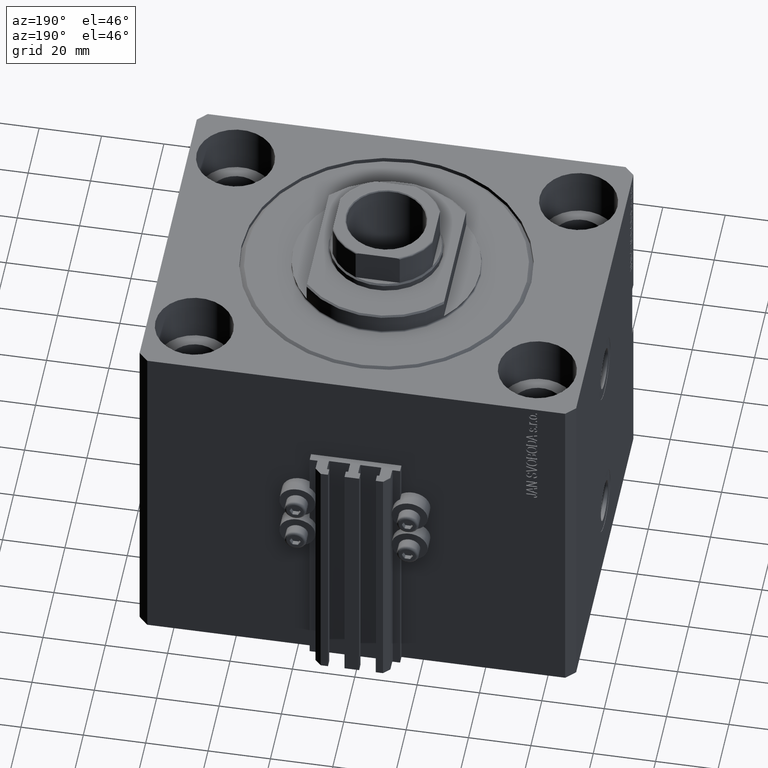
[diagram: clean part render]
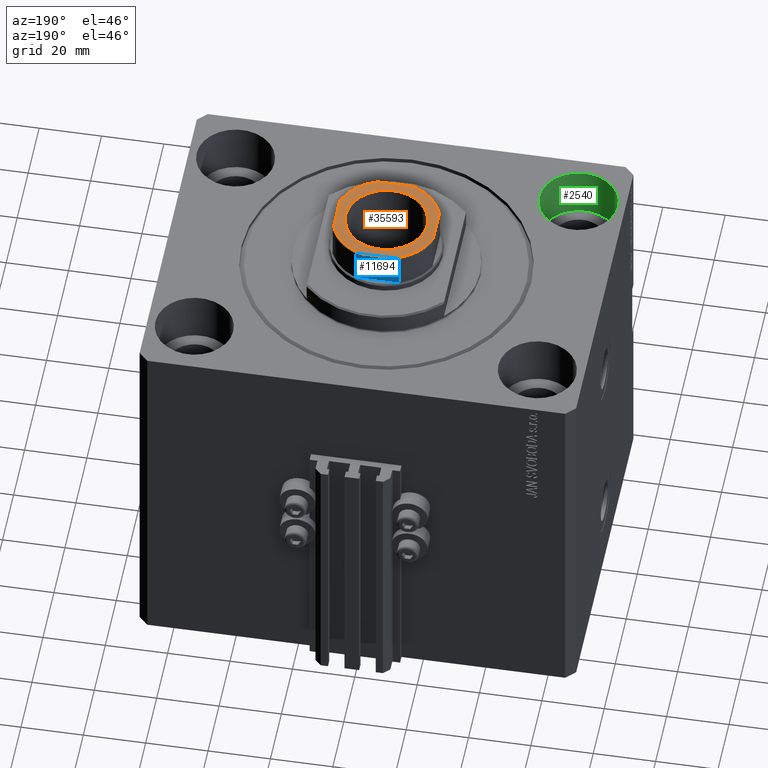
[diagram: same view with three faces highlighted in distinct colors, each labeled with its STEP entity id]
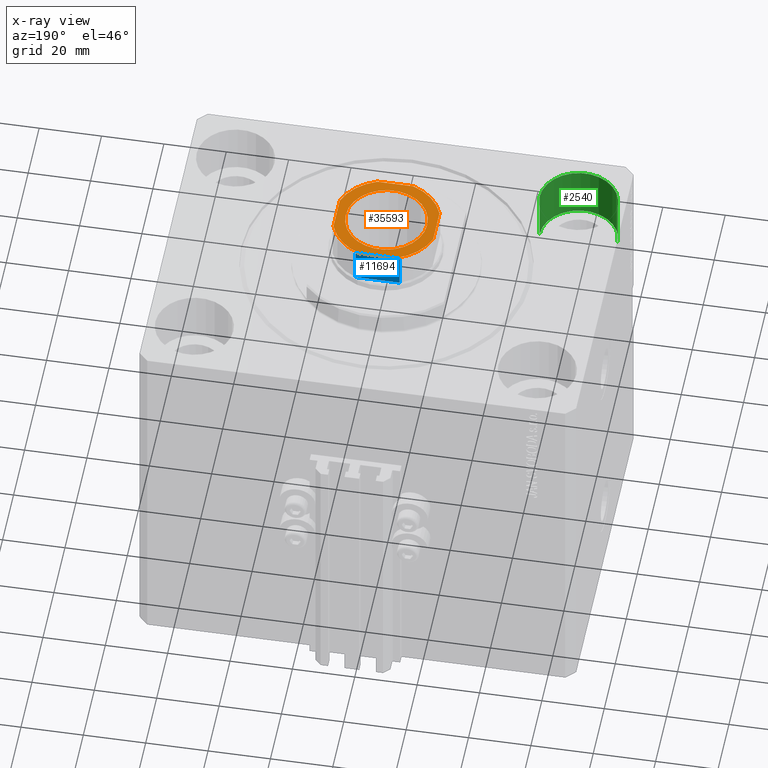
[diagram: x-ray of the same camera — body ghosted, the three highlighted faces saturated]
A machine part, auxiliary view with three faces highlighted in distinct colors.
The next image is the same camera in x-ray (body ghosted, the three faces saturated) — at least one of them is partly hidden behind the body in this view.
Their STEP definitions:

[orange] entity #35593 — the highlighted planar face has unit normal (0, 0, 1).
#888 = CIRCLE ( 'NONE', #45003, 17.00000000000000000 ) ;
#1008 = AXIS2_PLACEMENT_3D ( 'NONE', #35154, #36130, #43273 ) ;
#1222 = ORIENTED_EDGE ( 'NONE', *, *, #22943, .T. ) ;
#1229 = CARTESIAN_POINT ( 'NONE',  ( 0.000000000000000000, 0.000000000000000000, 115.0000000000000000 ) ) ;
#1990 = EDGE_CURVE ( 'NONE', #29899, #39072, #888, .T. ) ;
#2306 = VERTEX_POINT ( 'NONE', #12203 ) ;
#2741 = DIRECTION ( 'NONE',  ( -0.000000000000000000, 0.000000000000000000, 1.000000000000000000 ) ) ;
#2802 = EDGE_LOOP ( 'NONE', ( #1222, #17059, #14681, #40336, #27572, #35473, #37723, #5499 ) ) ;
#3906 = DIRECTION ( 'NONE',  ( -0.000000000000000000, 0.000000000000000000, 1.000000000000000000 ) ) ;
#5158 = VERTEX_POINT ( 'NONE', #33772 ) ;
#5499 = ORIENTED_EDGE ( 'NONE', *, *, #48217, .T. ) ;
#6064 = VECTOR ( 'NONE', #24381, 1000.000000000000000 ) ;
#6183 = CARTESIAN_POINT ( 'NONE',  ( 0.000000000000000000, 0.000000000000000000, 115.0000000000000000 ) ) ;
#6192 = CARTESIAN_POINT ( 'NONE',  ( 16.00000000000000000, 5.744562646538033945, 115.0000000000000000 ) ) ;
#6640 = CIRCLE ( 'NONE', #42912, 13.05000000000003268 ) ;
#7552 = DIRECTION ( 'NONE',  ( -0.000000000000000000, 0.000000000000000000, 1.000000000000000000 ) ) ;
#7554 = CARTESIAN_POINT ( 'NONE',  ( 5.744562646538033057, 16.00000000000000000, 115.0000000000000000 ) ) ;
#7880 = VERTEX_POINT ( 'NONE', #6192 ) ;
#7931 = LINE ( 'NONE', #22991, #13995 ) ;
#9322 = CARTESIAN_POINT ( 'NONE',  ( -16.00000000000000000, 15.99999999999999645, 115.0000000000000000 ) ) ;
#9603 = EDGE_CURVE ( 'NONE', #5158, #32134, #32564, .T. ) ;
#9815 = AXIS2_PLACEMENT_3D ( 'NONE', #45318, #7552, #37687 ) ;
#10361 = CARTESIAN_POINT ( 'NONE',  ( -5.744562646538033945, 16.00000000000000000, 115.0000000000000000 ) ) ;
#10799 = VECTOR ( 'NONE', #39088, 1000.000000000000000 ) ;
#10916 = CARTESIAN_POINT ( 'NONE',  ( 5.744562646538024175, -16.00000000000000355, 115.0000000000000000 ) ) ;
#11319 = CARTESIAN_POINT ( 'NONE',  ( 0.000000000000000000, 0.000000000000000000, 115.0000000000000000 ) ) ;
#11395 = CIRCLE ( 'NONE', #9815, 17.00000000000000000 ) ;
#12203 = CARTESIAN_POINT ( 'NONE',  ( -16.00000000000000000, 5.744562646538029504, 115.0000000000000000 ) ) ;
#13235 = VERTEX_POINT ( 'NONE', #10361 ) ;
#13812 = AXIS2_PLACEMENT_3D ( 'NONE', #21730, #2741, #48630 ) ;
#13995 = VECTOR ( 'NONE', #45697, 1000.000000000000000 ) ;
#14681 = ORIENTED_EDGE ( 'NONE', *, *, #27976, .T. ) ;
#14771 = FACE_BOUND ( 'NONE', #15767, .T. ) ;
#15399 = CIRCLE ( 'NONE', #42208, 17.00000000000000000 ) ;
#15767 = EDGE_LOOP ( 'NONE', ( #41610, #41421 ) ) ;
#15782 = EDGE_CURVE ( 'NONE', #32134, #5158, #6640, .T. ) ;
#16359 = CARTESIAN_POINT ( 'NONE',  ( -16.00000000000000000, -5.744562646538033945, 115.0000000000000000 ) ) ;
#16617 = CARTESIAN_POINT ( 'NONE',  ( -13.05000000000003268, 1.598164072887299324E-15, 115.0000000000000000 ) ) ;
#17059 = ORIENTED_EDGE ( 'NONE', *, *, #1990, .T. ) ;
#17130 = EDGE_CURVE ( 'NONE', #7880, #41048, #11395, .T. ) ;
#17523 = DIRECTION ( 'NONE',  ( 1.000000000000000000, 0.000000000000000000, 0.000000000000000000 ) ) ;
#17807 = DIRECTION ( 'NONE',  ( -1.084202172485504434E-16, 1.000000000000000000, -0.000000000000000000 ) ) ;
#19422 = EDGE_CURVE ( 'NONE', #42605, #35847, #15399, .T. ) ;
#21261 = LINE ( 'NONE', #39825, #10799 ) ;
#21730 = CARTESIAN_POINT ( 'NONE',  ( 0.000000000000000000, 0.000000000000000000, 115.0000000000000000 ) ) ;
#21872 = CARTESIAN_POINT ( 'NONE',  ( 16.00000000000000355, -5.744562646538033057, 115.0000000000000000 ) ) ;
#22603 = DIRECTION ( 'NONE',  ( -0.000000000000000000, 0.000000000000000000, 1.000000000000000000 ) ) ;
#22943 = EDGE_CURVE ( 'NONE', #2306, #29899, #21261, .T. ) ;
#22991 = CARTESIAN_POINT ( 'NONE',  ( -15.99999999999999645, -16.00000000000000355, 115.0000000000000000 ) ) ;
#23158 = DIRECTION ( 'NONE',  ( 1.000000000000000000, 0.000000000000000000, 0.000000000000000000 ) ) ;
#24381 = DIRECTION ( 'NONE',  ( -1.000000000000000000, -1.084202172485504434E-16, -0.000000000000000000 ) ) ;
#25418 = CARTESIAN_POINT ( 'NONE',  ( -5.744562646538029504, -16.00000000000000355, 115.0000000000000000 ) ) ;
#26590 = EDGE_CURVE ( 'NONE', #41048, #13235, #28103, .T. ) ;
#26866 = FACE_OUTER_BOUND ( 'NONE', #2802, .T. ) ;
#27572 = ORIENTED_EDGE ( 'NONE', *, *, #34438, .T. ) ;
#27976 = EDGE_CURVE ( 'NONE', #39072, #42605, #7931, .T. ) ;
#28103 = LINE ( 'NONE', #9322, #6064 ) ;
#28428 = DIRECTION ( 'NONE',  ( -0.000000000000000000, 0.000000000000000000, 1.000000000000000000 ) ) ;
#28816 = CIRCLE ( 'NONE', #13812, 17.00000000000000000 ) ;
#29899 = VERTEX_POINT ( 'NONE', #16359 ) ;
#32134 = VERTEX_POINT ( 'NONE', #16617 ) ;
#32564 = CIRCLE ( 'NONE', #1008, 13.05000000000003268 ) ;
#33633 = CARTESIAN_POINT ( 'NONE',  ( 16.00000000000000000, 16.00000000000000000, 115.0000000000000000 ) ) ;
#33772 = CARTESIAN_POINT ( 'NONE',  ( 13.05000000000003268, 0.000000000000000000, 115.0000000000000000 ) ) ;
#34438 = EDGE_CURVE ( 'NONE', #35847, #7880, #44726, .T. ) ;
#34471 = CARTESIAN_POINT ( 'NONE',  ( 0.000000000000000000, 0.000000000000000000, 115.0000000000000000 ) ) ;
#35154 = CARTESIAN_POINT ( 'NONE',  ( 0.000000000000000000, 0.000000000000000000, 115.0000000000000000 ) ) ;
#35473 = ORIENTED_EDGE ( 'NONE', *, *, #17130, .T. ) ;
#35544 = DIRECTION ( 'NONE',  ( 0.000000000000000000, -0.000000000000000000, -1.000000000000000000 ) ) ;
#35593 = ADVANCED_FACE ( 'NONE', ( #14771, #26866 ), #41925, .T. ) ;
#35847 = VERTEX_POINT ( 'NONE', #21872 ) ;
#36130 = DIRECTION ( 'NONE',  ( 0.000000000000000000, -0.000000000000000000, -1.000000000000000000 ) ) ;
#37687 = DIRECTION ( 'NONE',  ( 1.000000000000000000, 0.000000000000000000, 0.000000000000000000 ) ) ;
#37723 = ORIENTED_EDGE ( 'NONE', *, *, #26590, .T. ) ;
#39072 = VERTEX_POINT ( 'NONE', #25418 ) ;
#39088 = DIRECTION ( 'NONE',  ( 1.084202172485504434E-16, -1.000000000000000000, 0.000000000000000000 ) ) ;
#39456 = VECTOR ( 'NONE', #17807, 1000.000000000000000 ) ;
#39825 = CARTESIAN_POINT ( 'NONE',  ( -16.00000000000000000, 15.99999999999999645, 115.0000000000000000 ) ) ;
#40336 = ORIENTED_EDGE ( 'NONE', *, *, #19422, .T. ) ;
#41048 = VERTEX_POINT ( 'NONE', #7554 ) ;
#41421 = ORIENTED_EDGE ( 'NONE', *, *, #15782, .T. ) ;
#41610 = ORIENTED_EDGE ( 'NONE', *, *, #9603, .T. ) ;
#41925 = PLANE ( 'NONE',  #41932 ) ;
#41932 = AXIS2_PLACEMENT_3D ( 'NONE', #11319, #3906, #23158 ) ;
#41972 = DIRECTION ( 'NONE',  ( 1.000000000000000000, 0.000000000000000000, 0.000000000000000000 ) ) ;
#42208 = AXIS2_PLACEMENT_3D ( 'NONE', #34471, #22603, #45062 ) ;
#42605 = VERTEX_POINT ( 'NONE', #10916 ) ;
#42912 = AXIS2_PLACEMENT_3D ( 'NONE', #1229, #35544, #41972 ) ;
#43273 = DIRECTION ( 'NONE',  ( 1.000000000000000000, 0.000000000000000000, 0.000000000000000000 ) ) ;
#44726 = LINE ( 'NONE', #33633, #39456 ) ;
#45003 = AXIS2_PLACEMENT_3D ( 'NONE', #6183, #28428, #17523 ) ;
#45062 = DIRECTION ( 'NONE',  ( 1.000000000000000000, 0.000000000000000000, 0.000000000000000000 ) ) ;
#45318 = CARTESIAN_POINT ( 'NONE',  ( 0.000000000000000000, 0.000000000000000000, 115.0000000000000000 ) ) ;
#45697 = DIRECTION ( 'NONE',  ( 1.000000000000000000, 1.084202172485504434E-16, 0.000000000000000000 ) ) ;
#48217 = EDGE_CURVE ( 'NONE', #13235, #2306, #28816, .T. ) ;
#48630 = DIRECTION ( 'NONE',  ( 1.000000000000000000, 0.000000000000000000, 0.000000000000000000 ) ) ;

[blue] entity #11694 — the highlighted planar face has unit normal (0, -1, 0).
#423 = VERTEX_POINT ( 'NONE', #3771 ) ;
#881 = CARTESIAN_POINT ( 'NONE',  ( 7.055793701721082556, 16.00000000000000000, 114.6256279161197966 ) ) ;
#1241 = CARTESIAN_POINT ( 'NONE',  ( -7.088723439378916247, 16.00000000000000000, 114.5000000000000000 ) ) ;
#1693 = ORIENTED_EDGE ( 'NONE', *, *, #23651, .T. ) ;
#2906 = VECTOR ( 'NONE', #41749, 1000.000000000000000 ) ;
#3771 = CARTESIAN_POINT ( 'NONE',  ( -7.088723439378917135, 16.00000000000000000, 104.0000000000000284 ) ) ;
#4578 = CARTESIAN_POINT ( 'NONE',  ( 7.088723439378914470, 16.00000000000000000, 114.5000000000000000 ) ) ;
#4614 = CARTESIAN_POINT ( 'NONE',  ( 7.088723439378914470, 16.00000000000000000, 114.5000000000000000 ) ) ;
#4804 = CARTESIAN_POINT ( 'NONE',  ( 7.088723439378914470, 16.00000000000000000, -0.001000000000001000089 ) ) ;
#5280 = ORIENTED_EDGE ( 'NONE', *, *, #43227, .T. ) ;
#5321 = CARTESIAN_POINT ( 'NONE',  ( -6.914772706552272830, 15.99999999999999645, 114.7576711345670617 ) ) ;
#6050 = CARTESIAN_POINT ( 'NONE',  ( -5.744562646538033945, 16.00000000000000000, 115.0000000000000000 ) ) ;
#6064 = VECTOR ( 'NONE', #24381, 1000.000000000000000 ) ;
#7554 = CARTESIAN_POINT ( 'NONE',  ( 5.744562646538033057, 16.00000000000000000, 115.0000000000000000 ) ) ;
#8041 = CARTESIAN_POINT ( 'NONE',  ( 5.744562646538033057, 16.00000000000000000, 115.0000000000000000 ) ) ;
#8771 = VERTEX_POINT ( 'NONE', #1241 ) ;
#9260 = CARTESIAN_POINT ( 'NONE',  ( 7.088723439378914470, 16.00000000000000355, 114.5655697653146632 ) ) ;
#9322 = CARTESIAN_POINT ( 'NONE',  ( -16.00000000000000000, 15.99999999999999645, 115.0000000000000000 ) ) ;
#9538 = DIRECTION ( 'NONE',  ( -0.000000000000000000, -0.000000000000000000, 1.000000000000000000 ) ) ;
#10361 = CARTESIAN_POINT ( 'NONE',  ( -5.744562646538033945, 16.00000000000000000, 115.0000000000000000 ) ) ;
#10413 = AXIS2_PLACEMENT_3D ( 'NONE', #30504, #11715, #26782 ) ;
#11376 = LINE ( 'NONE', #38300, #2906 ) ;
#11694 = ADVANCED_FACE ( 'NONE', ( #19113 ), #15404, .F. ) ;
#11715 = DIRECTION ( 'NONE',  ( 1.084202172485504557E-16, -1.000000000000000000, 0.000000000000000000 ) ) ;
#12143 = ORIENTED_EDGE ( 'NONE', *, *, #22243, .T. ) ;
#12694 = LINE ( 'NONE', #4804, #22422 ) ;
#12974 = CARTESIAN_POINT ( 'NONE',  ( -7.088723439378917135, 16.00000000000000355, 114.5653596029795693 ) ) ;
#13235 = VERTEX_POINT ( 'NONE', #10361 ) ;
#14493 = ORIENTED_EDGE ( 'NONE', *, *, #17210, .F. ) ;
#15404 = PLANE ( 'NONE',  #10413 ) ;
#17210 = EDGE_CURVE ( 'NONE', #23973, #31482, #12694, .T. ) ;
#17409 = CARTESIAN_POINT ( 'NONE',  ( -7.088723439378916247, 16.00000000000000000, -0.001000000000001000089 ) ) ;
#18404 = B_SPLINE_CURVE_WITH_KNOTS ( 'NONE', 3,
 ( #27799, #12974, #43588, #32249, #5321, #24085, #38917, #24333, #42853, #6050 ),
 .UNSPECIFIED., .F., .F.,
 ( 4, 2, 2, 2, 4 ),
 ( 0.000000000000000000, 0.0001928955851489424047, 0.0003857911702978848094, 0.0007715823405957720040, 0.001543164681191536419 ),
 .UNSPECIFIED. ) ;
#19113 = FACE_OUTER_BOUND ( 'NONE', #39003, .T. ) ;
#19629 = CARTESIAN_POINT ( 'NONE',  ( 6.967626683430020229, 16.00000000000000000, 114.7212986014228733 ) ) ;
#20106 = CARTESIAN_POINT ( 'NONE',  ( 6.744478600285203740, 16.00000000000000000, 114.8522542963852828 ) ) ;
#22243 = EDGE_CURVE ( 'NONE', #23973, #423, #11376, .T. ) ;
#22422 = VECTOR ( 'NONE', #31492, 1000.000000000000000 ) ;
#23104 = CARTESIAN_POINT ( 'NONE',  ( 5.999698100840003434, 16.00000000000000355, 115.0000000000000284 ) ) ;
#23651 = EDGE_CURVE ( 'NONE', #41048, #31482, #25844, .T. ) ;
#23973 = VERTEX_POINT ( 'NONE', #25794 ) ;
#24085 = CARTESIAN_POINT ( 'NONE',  ( -6.746962372739937486, 15.99999999999999645, 114.8511068297690514 ) ) ;
#24333 = CARTESIAN_POINT ( 'NONE',  ( -6.252433022027811482, 15.99999999999999289, 114.9806157152108170 ) ) ;
#24381 = DIRECTION ( 'NONE',  ( -1.000000000000000000, -1.084202172485504434E-16, -0.000000000000000000 ) ) ;
#25794 = CARTESIAN_POINT ( 'NONE',  ( 7.088723439378916247, 16.00000000000000355, 104.0000000000000284 ) ) ;
#25844 = B_SPLINE_CURVE_WITH_KNOTS ( 'NONE', 3,
 ( #8041, #23104, #38190, #42363, #20106, #38658, #19629, #881, #9260, #4578 ),
 .UNSPECIFIED., .F., .F.,
 ( 4, 2, 2, 2, 4 ),
 ( 8.673617379884035472E-19, 0.0007561879621635766383, 0.001134281943245368102, 0.001323328933786262641, 0.001512375924327157180 ),
 .UNSPECIFIED. ) ;
#26590 = EDGE_CURVE ( 'NONE', #41048, #13235, #28103, .T. ) ;
#26782 = DIRECTION ( 'NONE',  ( 1.000000000000000000, 1.084202172485504557E-16, 0.000000000000000000 ) ) ;
#27799 = CARTESIAN_POINT ( 'NONE',  ( -7.088723439378916247, 16.00000000000000000, 114.5000000000000000 ) ) ;
#28103 = LINE ( 'NONE', #9322, #6064 ) ;
#30504 = CARTESIAN_POINT ( 'NONE',  ( -16.00000000000000000, 15.99999999999999645, 115.0000000000000000 ) ) ;
#31482 = VERTEX_POINT ( 'NONE', #4614 ) ;
#31492 = DIRECTION ( 'NONE',  ( -0.000000000000000000, -0.000000000000000000, 1.000000000000000000 ) ) ;
#31866 = EDGE_CURVE ( 'NONE', #423, #8771, #43362, .T. ) ;
#32249 = CARTESIAN_POINT ( 'NONE',  ( -6.968475375953136819, 15.99999999999999645, 114.7205009019615289 ) ) ;
#33851 = VECTOR ( 'NONE', #9538, 1000.000000000000000 ) ;
#38190 = CARTESIAN_POINT ( 'NONE',  ( 6.251780714621283153, 16.00000000000000000, 114.9805079891187063 ) ) ;
#38300 = CARTESIAN_POINT ( 'NONE',  ( -16.00000000000000000, 15.99999999999999645, 104.0000000000000142 ) ) ;
#38658 = CARTESIAN_POINT ( 'NONE',  ( 6.914158745692625452, 16.00000000000000000, 114.7581288012991081 ) ) ;
#38917 = CARTESIAN_POINT ( 'NONE',  ( -6.623467753754351151, 16.00000000000000355, 114.8910978819201887 ) ) ;
#39003 = EDGE_LOOP ( 'NONE', ( #45889, #1693, #14493, #12143, #44454, #5280 ) ) ;
#41048 = VERTEX_POINT ( 'NONE', #7554 ) ;
#41749 = DIRECTION ( 'NONE',  ( -1.000000000000000000, -1.084202172485504434E-16, -0.000000000000000000 ) ) ;
#42363 = CARTESIAN_POINT ( 'NONE',  ( 6.620608993398011677, 16.00000000000000355, 114.8919184437072687 ) ) ;
#42853 = CARTESIAN_POINT ( 'NONE',  ( -5.999773414835113172, 16.00000000000000000, 115.0000000000000284 ) ) ;
#43227 = EDGE_CURVE ( 'NONE', #8771, #13235, #18404, .T. ) ;
#43362 = LINE ( 'NONE', #17409, #33851 ) ;
#43588 = CARTESIAN_POINT ( 'NONE',  ( -7.055665994487715587, 15.99999999999999289, 114.6256422470903829 ) ) ;
#44454 = ORIENTED_EDGE ( 'NONE', *, *, #31866, .T. ) ;
#45889 = ORIENTED_EDGE ( 'NONE', *, *, #26590, .F. ) ;

[green] entity #2540 — the highlighted cylindrical surface (partial cylindrical patch) has radius 12.5 mm, axis along (0, 0, 1).
#122 = ORIENTED_EDGE ( 'NONE', *, *, #13941, .F. ) ;
#2540 = ADVANCED_FACE ( 'NONE', ( #29478 ), #44526, .F. ) ;
#3858 = LINE ( 'NONE', #19633, #19862 ) ;
#3988 = VERTEX_POINT ( 'NONE', #5611 ) ;
#5611 = CARTESIAN_POINT ( 'NONE',  ( -42.50000000000000711, -37.50000000000000711, 0.000000000000000000 ) ) ;
#5714 = AXIS2_PLACEMENT_3D ( 'NONE', #13999, #47817, #20666 ) ;
#6986 = DIRECTION ( 'NONE',  ( 1.000000000000000000, 0.000000000000000000, 0.000000000000000000 ) ) ;
#7047 = EDGE_CURVE ( 'NONE', #26417, #3988, #17603, .T. ) ;
#9297 = DIRECTION ( 'NONE',  ( 0.000000000000000000, 0.000000000000000000, 1.000000000000000000 ) ) ;
#11024 = DIRECTION ( 'NONE',  ( -0.000000000000000000, -0.000000000000000000, 1.000000000000000000 ) ) ;
#11754 = VERTEX_POINT ( 'NONE', #39360 ) ;
#12714 = EDGE_CURVE ( 'NONE', #25074, #11754, #15952, .T. ) ;
#13941 = EDGE_CURVE ( 'NONE', #11754, #3988, #23300, .T. ) ;
#13999 = CARTESIAN_POINT ( 'NONE',  ( -55.00000000000000711, -37.50000000000000711, -17.00000000000000000 ) ) ;
#15952 = CIRCLE ( 'NONE', #5714, 12.49999999999999645 ) ;
#17603 = CIRCLE ( 'NONE', #27077, 12.49999999999999645 ) ;
#19633 = CARTESIAN_POINT ( 'NONE',  ( -67.50000000000000000, -37.50000000000000711, -17.00000000000000000 ) ) ;
#19862 = VECTOR ( 'NONE', #11024, 1000.000000000000000 ) ;
#20666 = DIRECTION ( 'NONE',  ( 1.000000000000000000, 0.000000000000000000, 0.000000000000000000 ) ) ;
#22327 = ORIENTED_EDGE ( 'NONE', *, *, #12714, .F. ) ;
#23300 = LINE ( 'NONE', #34675, #48315 ) ;
#24596 = CARTESIAN_POINT ( 'NONE',  ( -55.00000000000000711, -37.50000000000000711, 0.000000000000000000 ) ) ;
#25033 = CARTESIAN_POINT ( 'NONE',  ( -55.00000000000000711, -37.50000000000000711, -17.00000000000000000 ) ) ;
#25074 = VERTEX_POINT ( 'NONE', #47695 ) ;
#26417 = VERTEX_POINT ( 'NONE', #42966 ) ;
#27077 = AXIS2_PLACEMENT_3D ( 'NONE', #24596, #9297, #28805 ) ;
#28530 = AXIS2_PLACEMENT_3D ( 'NONE', #25033, #40829, #6986 ) ;
#28805 = DIRECTION ( 'NONE',  ( 1.000000000000000000, 0.000000000000000000, 0.000000000000000000 ) ) ;
#29478 = FACE_OUTER_BOUND ( 'NONE', #29522, .T. ) ;
#29522 = EDGE_LOOP ( 'NONE', ( #22327, #31048, #41300, #122 ) ) ;
#31048 = ORIENTED_EDGE ( 'NONE', *, *, #36868, .T. ) ;
#34675 = CARTESIAN_POINT ( 'NONE',  ( -42.50000000000000711, -37.50000000000000711, -17.00000000000000000 ) ) ;
#36868 = EDGE_CURVE ( 'NONE', #25074, #26417, #3858, .T. ) ;
#39360 = CARTESIAN_POINT ( 'NONE',  ( -42.50000000000000711, -37.50000000000000711, -17.00000000000000000 ) ) ;
#40829 = DIRECTION ( 'NONE',  ( -0.000000000000000000, -0.000000000000000000, 1.000000000000000000 ) ) ;
#41300 = ORIENTED_EDGE ( 'NONE', *, *, #7047, .T. ) ;
#41831 = DIRECTION ( 'NONE',  ( -0.000000000000000000, -0.000000000000000000, 1.000000000000000000 ) ) ;
#42966 = CARTESIAN_POINT ( 'NONE',  ( -67.50000000000000000, -37.50000000000000711, 0.000000000000000000 ) ) ;
#44526 = CYLINDRICAL_SURFACE ( 'NONE', #28530, 12.49999999999999645 ) ;
#47695 = CARTESIAN_POINT ( 'NONE',  ( -67.50000000000000000, -37.50000000000000711, -17.00000000000000000 ) ) ;
#47817 = DIRECTION ( 'NONE',  ( 0.000000000000000000, 0.000000000000000000, 1.000000000000000000 ) ) ;
#48315 = VECTOR ( 'NONE', #41831, 1000.000000000000000 ) ;